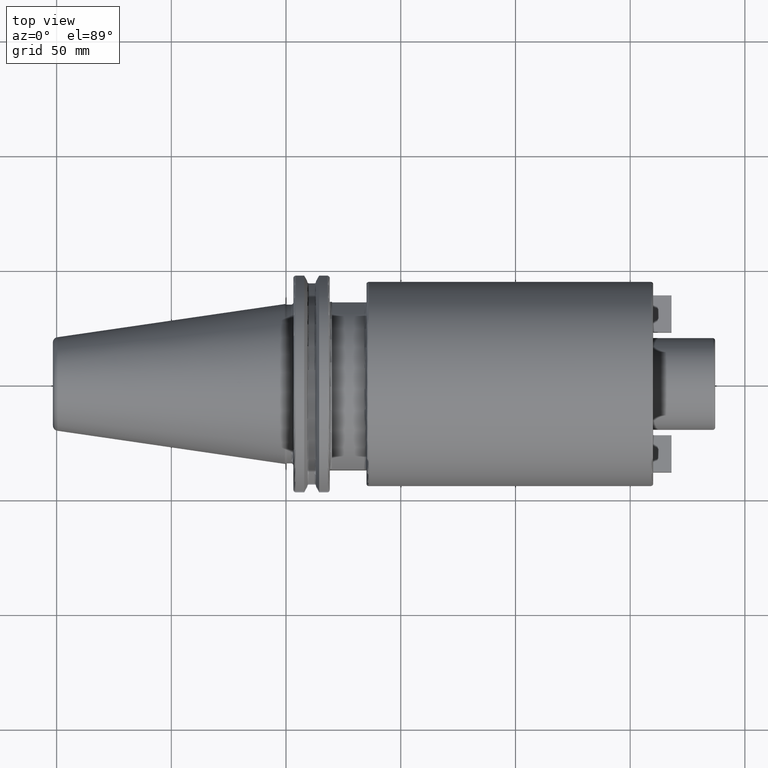
[diagram: clean part render]
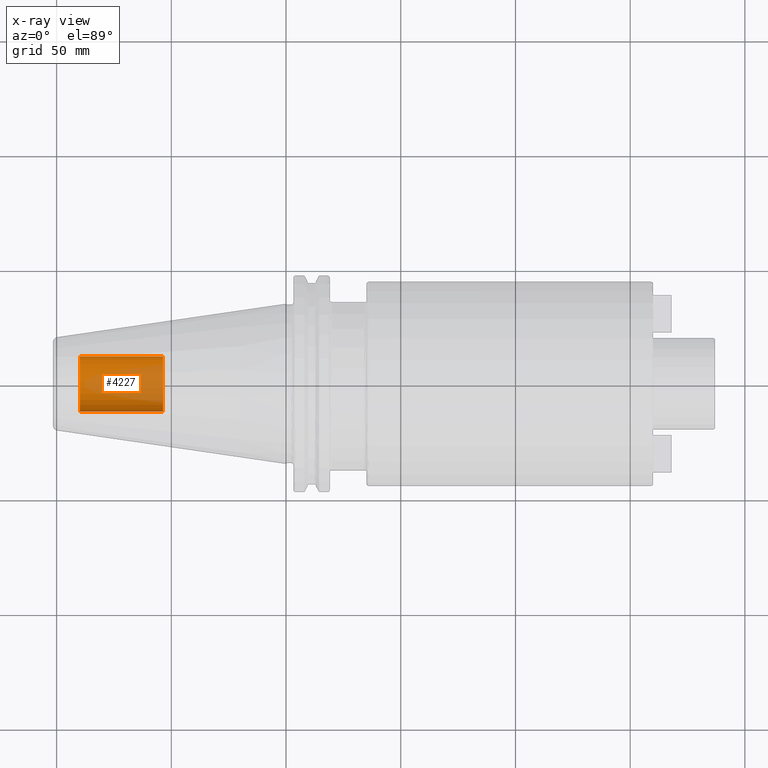
[diagram: x-ray — body ghosted, one internal face saturated and labeled with its STEP entity id]
A machine part, top view, then the same camera in x-ray: the body is ghosted and one INTERNAL B-rep face — a face not visible from any outside direction — is saturated and labeled: STEP entity #4227.
In plain terms, the highlighted cylindrical surface (edge-blend (fillet) strip) has radius 12.0032 mm, axis along (1, 0, 0).
Its self-contained STEP definition (entity closure, byte-faithful):
#4162=CARTESIAN_POINT('',(-8.985E1,0.E0,0.E0));
#4163=DIRECTION('',(-1.E0,0.E0,0.E0));
#4164=DIRECTION('',(0.E0,1.E0,0.E0));
#4165=AXIS2_PLACEMENT_3D('',#4162,#4163,#4164);
#4167=DIRECTION('',(1.E0,0.E0,0.E0));
#4168=VECTOR('',#4167,3.625E1);
#4169=CARTESIAN_POINT('',(-8.985E1,-1.200325E1,0.E0));
#4170=LINE('',#4169,#4168);
#4176=DIRECTION('',(1.E0,0.E0,0.E0));
#4177=VECTOR('',#4176,3.625E1);
#4178=CARTESIAN_POINT('',(-8.985E1,1.200325E1,0.E0));
#4179=LINE('',#4178,#4177);
#4185=CARTESIAN_POINT('',(-5.36E1,0.E0,0.E0));
#4186=DIRECTION('',(1.E0,0.E0,0.E0));
#4187=DIRECTION('',(0.E0,-1.E0,0.E0));
#4188=AXIS2_PLACEMENT_3D('',#4185,#4186,#4187);
#4200=CARTESIAN_POINT('',(-8.985E1,1.200325E1,0.E0));
#4201=CARTESIAN_POINT('',(-8.985E1,-1.200325E1,0.E0));
#4202=VERTEX_POINT('',#4200);
#4203=VERTEX_POINT('',#4201);
#4204=CARTESIAN_POINT('',(-5.36E1,1.200325E1,0.E0));
#4205=CARTESIAN_POINT('',(-5.36E1,-1.200325E1,0.E0));
#4206=VERTEX_POINT('',#4204);
#4207=VERTEX_POINT('',#4205);
#4212=CARTESIAN_POINT('',(-8.985E1,0.E0,0.E0));
#4213=DIRECTION('',(1.E0,0.E0,0.E0));
#4214=DIRECTION('',(0.E0,1.E0,0.E0));
#4215=AXIS2_PLACEMENT_3D('',#4212,#4213,#4214);
#4216=CYLINDRICAL_SURFACE('',#4215,1.200325E1);
#4218=ORIENTED_EDGE('',*,*,#4217,.T.);
#4220=ORIENTED_EDGE('',*,*,#4219,.T.);
#4222=ORIENTED_EDGE('',*,*,#4221,.T.);
#4224=ORIENTED_EDGE('',*,*,#4223,.F.);
#4225=EDGE_LOOP('',(#4218,#4220,#4222,#4224));
#4226=FACE_OUTER_BOUND('',#4225,.F.);
#4227=ADVANCED_FACE('',(#4226),#4216,.T.);
#4166=CIRCLE('',#4165,1.200325E1);
#4189=CIRCLE('',#4188,1.200325E1);
#4217=EDGE_CURVE('',#4202,#4203,#4166,.T.);
#4219=EDGE_CURVE('',#4203,#4207,#4170,.T.);
#4221=EDGE_CURVE('',#4207,#4206,#4189,.T.);
#4223=EDGE_CURVE('',#4202,#4206,#4179,.T.);